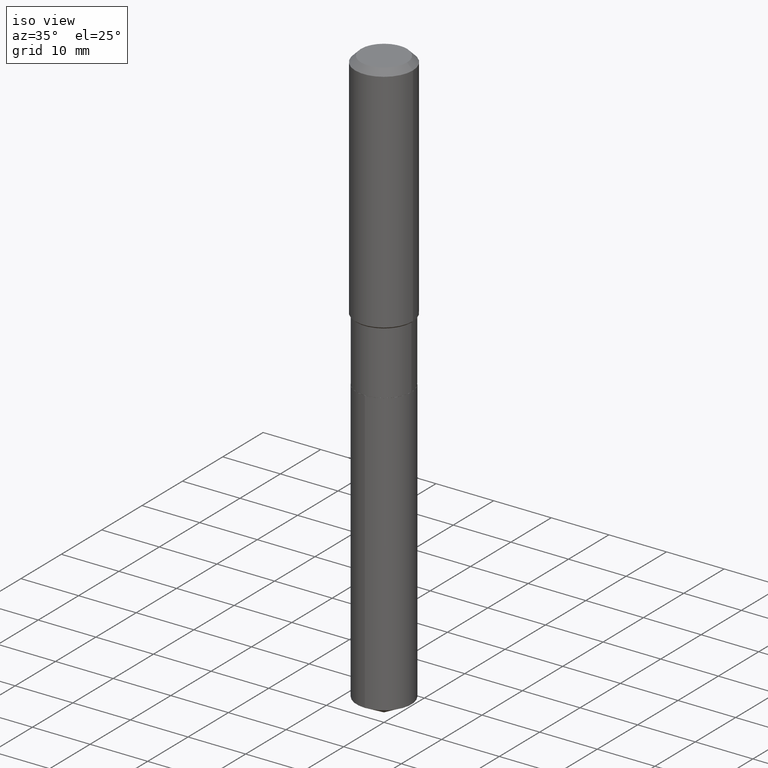
[diagram: clean part render]
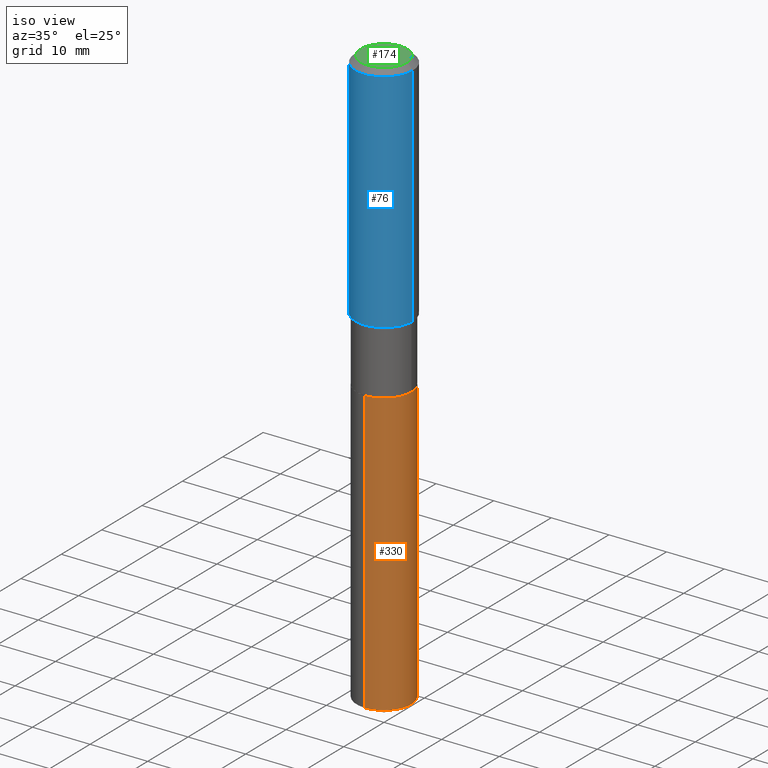
[diagram: same view with three faces highlighted in distinct colors, each labeled with its STEP entity id]
A machine part, iso view with three faces highlighted in distinct colors.
Their STEP definitions:

[orange] entity #330 — the highlighted cylindrical surface (edge-blend (fillet) strip) has radius 4.7498 mm, axis along (-0, 0, 1).
#7 = DIRECTION ( 'NONE',  ( -2.445495425185419561E-29, 3.491443218919681026E-15, 1.000000000000000000 ) ) ;
#17 = AXIS2_PLACEMENT_3D ( 'NONE', #29, #486, #207 ) ;
#23 = VERTEX_POINT ( 'NONE', #353 ) ;
#29 = CARTESIAN_POINT ( 'NONE',  ( 4.958188004540364383E-29, -7.078978414504478595E-15, -2.027500000000000302 ) ) ;
#47 = CARTESIAN_POINT ( 'NONE',  ( -1.305814020727282303E-15, -0.1870000000000070772, -2.027499999999999414 ) ) ;
#67 = EDGE_CURVE ( 'NONE', #146, #23, #373, .T. ) ;
#78 = CARTESIAN_POINT ( 'NONE',  ( 4.958188004540364383E-29, -7.078978414504478595E-15, -2.027500000000000302 ) ) ;
#96 = CYLINDRICAL_SURFACE ( 'NONE', #17, 0.1869999999999999996 ) ;
#102 = AXIS2_PLACEMENT_3D ( 'NONE', #78, #220, #378 ) ;
#122 = EDGE_CURVE ( 'NONE', #224, #270, #477, .T. ) ;
#128 = CARTESIAN_POINT ( 'NONE',  ( 1.328714915871436648E-15, 0.1869999999999929496, -2.027500000000000746 ) ) ;
#146 = VERTEX_POINT ( 'NONE', #150 ) ;
#150 = CARTESIAN_POINT ( 'NONE',  ( -1.305814020727234577E-15, -0.1870000000000137386, -3.955670336279303534 ) ) ;
#164 = ORIENTED_EDGE ( 'NONE', *, *, #122, .F. ) ;
#168 = VECTOR ( 'NONE', #7, 39.37007874015748143 ) ;
#180 = ORIENTED_EDGE ( 'NONE', *, *, #67, .T. ) ;
#207 = DIRECTION ( 'NONE',  ( -6.982962677686266711E-15, -1.000000000000000000, 2.921762560068730595E-15 ) ) ;
#215 = LINE ( 'NONE', #295, #168 ) ;
#220 = DIRECTION ( 'NONE',  ( -2.445495425185419841E-29, 3.491443218919680631E-15, 1.000000000000000000 ) ) ;
#221 = CARTESIAN_POINT ( 'NONE',  ( 9.673519740889634982E-29, -1.381107566002893421E-14, -3.955670336279303978 ) ) ;
#224 = VERTEX_POINT ( 'NONE', #47 ) ;
#231 = ORIENTED_EDGE ( 'NONE', *, *, #468, .F. ) ;
#233 = ORIENTED_EDGE ( 'NONE', *, *, #382, .T. ) ;
#256 = DIRECTION ( 'NONE',  ( -6.982962677686266711E-15, -1.000000000000000000, 2.921762560068730595E-15 ) ) ;
#257 = AXIS2_PLACEMENT_3D ( 'NONE', #221, #299, #256 ) ;
#268 = VECTOR ( 'NONE', #448, 39.37007874015748143 ) ;
#269 = CARTESIAN_POINT ( 'NONE',  ( 1.328714915871483980E-15, 0.1869999999999929219, -2.027500000000000746 ) ) ;
#270 = VERTEX_POINT ( 'NONE', #269 ) ;
#295 = CARTESIAN_POINT ( 'NONE',  ( -1.305814020727282303E-15, -0.1870000000000070772, -2.027499999999999414 ) ) ;
#299 = DIRECTION ( 'NONE',  ( -2.445495425185419841E-29, 3.491443218919680631E-15, 1.000000000000000000 ) ) ;
#307 = FACE_OUTER_BOUND ( 'NONE', #388, .T. ) ;
#330 = ADVANCED_FACE ( 'NONE', ( #307 ), #96, .T. ) ;
#353 = CARTESIAN_POINT ( 'NONE',  ( 1.328714915871483585E-15, 0.1869999999999861495, -3.955670336279304422 ) ) ;
#373 = CIRCLE ( 'NONE', #257, 0.1869999999999999996 ) ;
#378 = DIRECTION ( 'NONE',  ( -6.982962677686266711E-15, -1.000000000000000000, 2.921762560068730595E-15 ) ) ;
#382 = EDGE_CURVE ( 'NONE', #23, #270, #451, .T. ) ;
#388 = EDGE_LOOP ( 'NONE', ( #180, #233, #164, #231 ) ) ;
#448 = DIRECTION ( 'NONE',  ( -2.445495425185419561E-29, 3.491443218919681026E-15, 1.000000000000000000 ) ) ;
#451 = LINE ( 'NONE', #128, #268 ) ;
#468 = EDGE_CURVE ( 'NONE', #146, #224, #215, .T. ) ;
#477 = CIRCLE ( 'NONE', #102, 0.1869999999999999996 ) ;
#486 = DIRECTION ( 'NONE',  ( -2.445495425185419841E-29, 3.491443218919680631E-15, 1.000000000000000000 ) ) ;

[blue] entity #76 — the highlighted cylindrical surface (edge-blend (fillet) strip) has radius 5 mm, axis along (-0, 0, 1).
#4 = CYLINDRICAL_SURFACE ( 'NONE', #437, 0.1968500000000001082 ) ;
#25 = CARTESIAN_POINT ( 'NONE',  ( 0.1968500000000000250, -1.512055823412797189E-15, -0.03937000000000029365 ) ) ;
#39 = FACE_OUTER_BOUND ( 'NONE', #201, .T. ) ;
#41 = DIRECTION ( 'NONE',  ( -2.445468806185136597E-29, 3.491481338843145583E-15, 1.000000000000000000 ) ) ;
#44 = CARTESIAN_POINT ( 'NONE',  ( 3.882304003259213067E-29, -5.542901199480434890E-15, -1.587549999999999795 ) ) ;
#70 = VECTOR ( 'NONE', #488, 39.37007874015748143 ) ;
#76 = ADVANCED_FACE ( 'NONE', ( #39 ), #4, .T. ) ;
#111 = CARTESIAN_POINT ( 'NONE',  ( 9.627810689950954155E-31, -1.374596203102556547E-16, -0.03937000000000029365 ) ) ;
#115 = ORIENTED_EDGE ( 'NONE', *, *, #135, .T. ) ;
#135 = EDGE_CURVE ( 'NONE', #188, #467, #141, .T. ) ;
#141 = CIRCLE ( 'NONE', #383, 0.1968500000000002192 ) ;
#143 = CARTESIAN_POINT ( 'NONE',  ( 0.000000000000000000, 0.000000000000000000, 0.000000000000000000 ) ) ;
#147 = DIRECTION ( 'NONE',  ( 1.000000000000000000, -6.982962677686266711E-15, 4.876176775795935793E-29 ) ) ;
#149 = VECTOR ( 'NONE', #248, 39.37007874015748143 ) ;
#151 = CARTESIAN_POINT ( 'NONE',  ( -0.1968500000000002192, -4.144197824136677102E-15, -1.587549999999999795 ) ) ;
#183 = DIRECTION ( 'NONE',  ( 1.000000000000000000, -6.982962677686265922E-15, 0.000000000000000000 ) ) ;
#188 = VERTEX_POINT ( 'NONE', #151 ) ;
#197 = CIRCLE ( 'NONE', #234, 0.1968500000000000250 ) ;
#201 = EDGE_LOOP ( 'NONE', ( #237, #115, #433, #288 ) ) ;
#234 = AXIS2_PLACEMENT_3D ( 'NONE', #111, #342, #469 ) ;
#237 = ORIENTED_EDGE ( 'NONE', *, *, #404, .F. ) ;
#242 = LINE ( 'NONE', #443, #70 ) ;
#248 = DIRECTION ( 'NONE',  ( -2.445468806185136877E-29, 3.491481338843145188E-15, 1.000000000000000000 ) ) ;
#266 = EDGE_CURVE ( 'NONE', #338, #343, #197, .T. ) ;
#288 = ORIENTED_EDGE ( 'NONE', *, *, #266, .F. ) ;
#316 = LINE ( 'NONE', #481, #149 ) ;
#324 = CARTESIAN_POINT ( 'NONE',  ( 0.1968500000000002192, -6.917497402582978865E-15, -1.587549999999999795 ) ) ;
#325 = DIRECTION ( 'NONE',  ( -2.445468806185136597E-29, 3.491481338843145583E-15, 1.000000000000000000 ) ) ;
#338 = VERTEX_POINT ( 'NONE', #361 ) ;
#342 = DIRECTION ( 'NONE',  ( -2.445468806185136597E-29, 3.491481338843145583E-15, 1.000000000000000000 ) ) ;
#343 = VERTEX_POINT ( 'NONE', #25 ) ;
#361 = CARTESIAN_POINT ( 'NONE',  ( -0.1968500000000000250, -1.441477034551586856E-15, -0.03937000000000029365 ) ) ;
#383 = AXIS2_PLACEMENT_3D ( 'NONE', #44, #325, #183 ) ;
#404 = EDGE_CURVE ( 'NONE', #188, #338, #242, .T. ) ;
#433 = ORIENTED_EDGE ( 'NONE', *, *, #449, .T. ) ;
#437 = AXIS2_PLACEMENT_3D ( 'NONE', #143, #41, #147 ) ;
#443 = CARTESIAN_POINT ( 'NONE',  ( -0.1968500000000001082, 1.398703375343757985E-15, -9.682923725166787881E-30 ) ) ;
#449 = EDGE_CURVE ( 'NONE', #467, #343, #316, .T. ) ;
#467 = VERTEX_POINT ( 'NONE', #324 ) ;
#469 = DIRECTION ( 'NONE',  ( 1.000000000000000000, -6.982962677686265922E-15, 0.000000000000000000 ) ) ;
#481 = CARTESIAN_POINT ( 'NONE',  ( 0.1968500000000001082, -1.374596203102542397E-15, 9.598753983154305062E-30 ) ) ;
#488 = DIRECTION ( 'NONE',  ( -2.445468806185136877E-29, 3.491481338843145188E-15, 1.000000000000000000 ) ) ;

[green] entity #174 — the highlighted planar face has unit normal (0, -0, -1).
#21 = DIRECTION ( 'NONE',  ( 2.438088387897960049E-29, -3.491481338843145188E-15, -1.000000000000000000 ) ) ;
#34 = AXIS2_PLACEMENT_3D ( 'NONE', #472, #21, #160 ) ;
#40 = VERTEX_POINT ( 'NONE', #385 ) ;
#55 = AXIS2_PLACEMENT_3D ( 'NONE', #401, #480, #239 ) ;
#95 = EDGE_CURVE ( 'NONE', #40, #309, #223, .T. ) ;
#156 = PLANE ( 'NONE',  #34 ) ;
#160 = DIRECTION ( 'NONE',  ( -1.000000000000000000, 6.982962677686265922E-15, -4.876176775795935793E-29 ) ) ;
#174 = ADVANCED_FACE ( 'NONE', ( #339 ), #156, .F. ) ;
#190 = ORIENTED_EDGE ( 'NONE', *, *, #412, .T. ) ;
#223 = CIRCLE ( 'NONE', #267, 0.1574800000000000089 ) ;
#239 = DIRECTION ( 'NONE',  ( 1.000000000000000000, -6.982962677686265922E-15, 4.876223630392693006E-29 ) ) ;
#267 = AXIS2_PLACEMENT_3D ( 'NONE', #422, #424, #328 ) ;
#293 = CIRCLE ( 'NONE', #55, 0.1574800000000000089 ) ;
#309 = VERTEX_POINT ( 'NONE', #389 ) ;
#328 = DIRECTION ( 'NONE',  ( 1.000000000000000000, -6.982962677686265922E-15, 4.876223630392693006E-29 ) ) ;
#339 = FACE_OUTER_BOUND ( 'NONE', #350, .T. ) ;
#350 = EDGE_LOOP ( 'NONE', ( #390, #190 ) ) ;
#385 = CARTESIAN_POINT ( 'NONE',  ( -0.1574800000000000089, 1.168406772637159618E-15, 3.855188123707939751E-18 ) ) ;
#389 = CARTESIAN_POINT ( 'NONE',  ( 0.1574800000000000089, -1.284169937930321189E-15, 3.855188123724205385E-18 ) ) ;
#390 = ORIENTED_EDGE ( 'NONE', *, *, #95, .T. ) ;
#401 = CARTESIAN_POINT ( 'NONE',  ( -9.427742298522567634E-47, 1.346031739168368355E-32, 3.855188123715870730E-18 ) ) ;
#412 = EDGE_CURVE ( 'NONE', #309, #40, #293, .T. ) ;
#422 = CARTESIAN_POINT ( 'NONE',  ( -9.427742298522567634E-47, 1.346031739168368355E-32, 3.855188123715870730E-18 ) ) ;
#424 = DIRECTION ( 'NONE',  ( -2.445468806185136597E-29, 3.491481338843145583E-15, 1.000000000000000000 ) ) ;
#472 = CARTESIAN_POINT ( 'NONE',  ( -4.713871149261283817E-47, 6.730158695841841775E-33, 1.927594061857935365E-18 ) ) ;
#480 = DIRECTION ( 'NONE',  ( -2.445468806185136597E-29, 3.491481338843145583E-15, 1.000000000000000000 ) ) ;